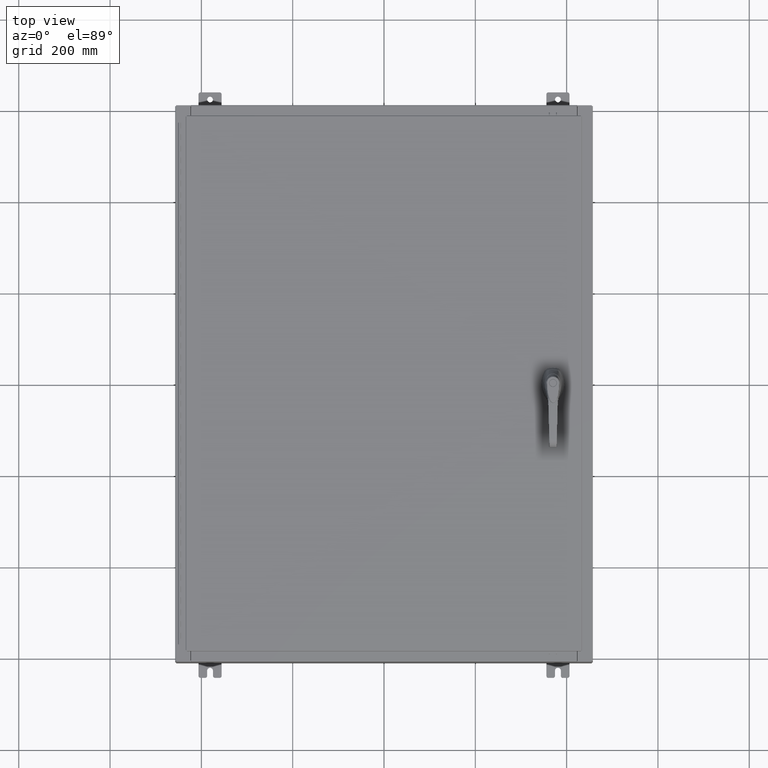
[diagram: clean part render]
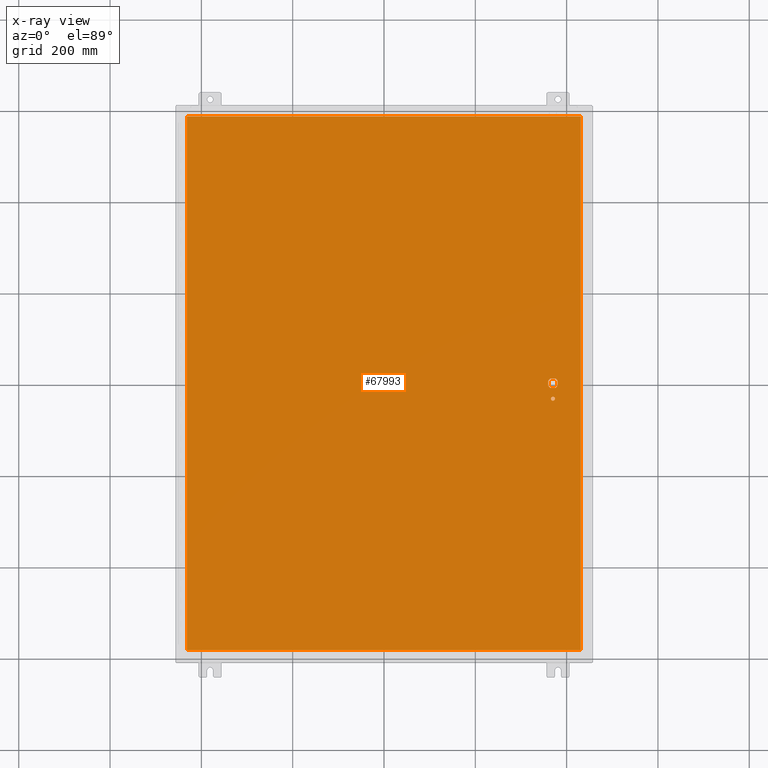
[diagram: x-ray — body ghosted, one internal face saturated and labeled with its STEP entity id]
A machine part, top view, then the same camera in x-ray: the body is ghosted and one INTERNAL B-rep face — a face not visible from any outside direction — is saturated and labeled: STEP entity #67993.
In plain terms, the highlighted planar face has unit normal (0, 0, -1).
Its self-contained STEP definition (entity closure, byte-faithful):
#1020 = CARTESIAN_POINT ( 'NONE',  ( 14.98099999999992700, 0.2002273707563075900, -0.07470000000000003000 ) ) ;
#2524 = AXIS2_PLACEMENT_3D ( 'NONE', #92184, #30022, #102583 ) ;
#3724 = CARTESIAN_POINT ( 'NONE',  ( 0.0000000000000000000, 0.0000000000000000000, -0.07470000000000000300 ) ) ;
#5314 = VERTEX_POINT ( 'NONE', #1020 ) ;
#6232 = VERTEX_POINT ( 'NONE', #21106 ) ;
#7034 = EDGE_CURVE ( 'NONE', #6232, #64340, #65610, .T. ) ;
#7605 = VERTEX_POINT ( 'NONE', #68672 ) ;
#8780 = DIRECTION ( 'NONE',  ( -1.000000000000000000, 0.0000000000000000000, 0.0000000000000000000 ) ) ;
#11219 = VERTEX_POINT ( 'NONE', #80505 ) ;
#12016 = CARTESIAN_POINT ( 'NONE',  ( 14.37777262924369000, 0.4029999999999252000, -0.07470000000000003000 ) ) ;
#12076 = EDGE_LOOP ( 'NONE', ( #100006, #33855, #123678, #41258 ) ) ;
#13948 = EDGE_CURVE ( 'NONE', #28593, #56545, #74224, .T. ) ;
#15265 = LINE ( 'NONE', #44502, #122368 ) ;
#18925 = CARTESIAN_POINT ( 'NONE',  ( 14.57799999999999900, 0.0000000000000000000, -0.07470000000000003000 ) ) ;
#21106 = CARTESIAN_POINT ( 'NONE',  ( 16.99029999999999800, 23.00630000000000300, -0.07470000000000000300 ) ) ;
#22406 = EDGE_CURVE ( 'NONE', #45009, #97822, #48580, .T. ) ;
#23104 = DIRECTION ( 'NONE',  ( 5.457491617345625800E-015, -1.000000000000000000, 0.0000000000000000000 ) ) ;
#24493 = CARTESIAN_POINT ( 'NONE',  ( 14.77822737075630900, 0.4029999999999250300, -0.07470000000000003000 ) ) ;
#24554 = DIRECTION ( 'NONE',  ( -1.000000000000000000, 0.0000000000000000000, -0.0000000000000000000 ) ) ;
#26044 = ORIENTED_EDGE ( 'NONE', *, *, #86337, .T. ) ;
#26246 = CIRCLE ( 'NONE', #79864, 0.4499999999999168000 ) ;
#27828 = CIRCLE ( 'NONE', #56399, 0.4499999999999168000 ) ;
#28206 = VECTOR ( 'NONE', #28889, 39.37007874015748100 ) ;
#28593 = VERTEX_POINT ( 'NONE', #88488 ) ;
#28889 = DIRECTION ( 'NONE',  ( 0.0000000000000000000, -1.000000000000000000, 0.0000000000000000000 ) ) ;
#29293 = CARTESIAN_POINT ( 'NONE',  ( 16.99029999999999800, -23.00630000000000000, -0.07470000000000000300 ) ) ;
#29324 = DIRECTION ( 'NONE',  ( -1.000000000000000000, -5.329070518200740300E-015, 0.0000000000000000000 ) ) ;
#29779 = EDGE_CURVE ( 'NONE', #77035, #6232, #15265, .T. ) ;
#30022 = DIRECTION ( 'NONE',  ( -0.0000000000000000000, -0.0000000000000000000, 1.000000000000000000 ) ) ;
#33855 = ORIENTED_EDGE ( 'NONE', *, *, #44879, .F. ) ;
#37885 = DIRECTION ( 'NONE',  ( 0.0000000000000000000, -1.000000000000000000, 0.0000000000000000000 ) ) ;
#41258 = ORIENTED_EDGE ( 'NONE', *, *, #7034, .F. ) ;
#41308 = VECTOR ( 'NONE', #43613, 39.37007874015748100 ) ;
#43613 = DIRECTION ( 'NONE',  ( -1.000000000000000000, -0.0000000000000000000, -0.0000000000000000000 ) ) ;
#44502 = CARTESIAN_POINT ( 'NONE',  ( 16.99029999999999800, -23.00630000000000300, -0.07470000000000019700 ) ) ;
#44879 = EDGE_CURVE ( 'NONE', #7605, #77035, #82700, .T. ) ;
#44997 = PLANE ( 'NONE',  #52706 ) ;
#45009 = VERTEX_POINT ( 'NONE', #62657 ) ;
#48580 = LINE ( 'NONE', #99981, #72872 ) ;
#48701 = CARTESIAN_POINT ( 'NONE',  ( 14.57799999999999900, 0.0000000000000000000, -0.07470000000000003000 ) ) ;
#49339 = CARTESIAN_POINT ( 'NONE',  ( -16.99029999999999400, 23.00630000000001000, -0.07470000000000129300 ) ) ;
#50303 = EDGE_CURVE ( 'NONE', #97822, #107798, #60876, .T. ) ;
#50347 = VECTOR ( 'NONE', #111269, 39.37007874015748100 ) ;
#51359 = LINE ( 'NONE', #85263, #54593 ) ;
#52300 = CARTESIAN_POINT ( 'NONE',  ( 14.17500000000007400, -0.2002273707563079800, -0.07470000000000003000 ) ) ;
#52706 = AXIS2_PLACEMENT_3D ( 'NONE', #3724, #86728, #24554 ) ;
#52815 = ORIENTED_EDGE ( 'NONE', *, *, #115786, .T. ) ;
#54593 = VECTOR ( 'NONE', #23104, 39.37007874015748100 ) ;
#55776 = DIRECTION ( 'NONE',  ( -0.0000000000000000000, -0.0000000000000000000, 1.000000000000000000 ) ) ;
#56399 = AXIS2_PLACEMENT_3D ( 'NONE', #117847, #55776, #128223 ) ;
#56545 = VERTEX_POINT ( 'NONE', #95530 ) ;
#59122 = DIRECTION ( 'NONE',  ( -1.000000000000000000, -1.776356839400246700E-015, 0.0000000000000000000 ) ) ;
#59989 = CARTESIAN_POINT ( 'NONE',  ( 14.57799999999999900, 0.0000000000000000000, -0.07470000000000003000 ) ) ;
#60214 = DIRECTION ( 'NONE',  ( -0.0000000000000000000, -0.0000000000000000000, 1.000000000000000000 ) ) ;
#60876 = CIRCLE ( 'NONE', #69810, 0.4499999999999168000 ) ;
#61274 = ORIENTED_EDGE ( 'NONE', *, *, #50303, .T. ) ;
#61358 = CARTESIAN_POINT ( 'NONE',  ( -16.99029999999999800, -23.00630000000000300, -0.07469999999999804600 ) ) ;
#62342 = LINE ( 'NONE', #49339, #28206 ) ;
#62657 = CARTESIAN_POINT ( 'NONE',  ( 14.17500000000007400, 0.2002273707563075900, -0.07470000000000003000 ) ) ;
#63234 = AXIS2_PLACEMENT_3D ( 'NONE', #122247, #60214, #132702 ) ;
#63471 = EDGE_CURVE ( 'NONE', #5314, #106907, #51359, .T. ) ;
#64340 = VERTEX_POINT ( 'NONE', #73209 ) ;
#65405 = FACE_BOUND ( 'NONE', #104880, .T. ) ;
#65610 = LINE ( 'NONE', #131927, #41308 ) ;
#66056 = ORIENTED_EDGE ( 'NONE', *, *, #13948, .T. ) ;
#67993 = ADVANCED_FACE ( 'NONE', ( #65405, #120540, #117284 ), #44997, .T. ) ;
#68672 = CARTESIAN_POINT ( 'NONE',  ( -16.99029999999999800, -23.00630000000000000, -0.07470000000000000300 ) ) ;
#69611 = EDGE_CURVE ( 'NONE', #56545, #28593, #86242, .T. ) ;
#69810 = AXIS2_PLACEMENT_3D ( 'NONE', #48701, #121176, #59122 ) ;
#70407 = DIRECTION ( 'NONE',  ( -1.000000000000000000, -5.329070518200740300E-015, 0.0000000000000000000 ) ) ;
#71764 = DIRECTION ( 'NONE',  ( 1.000000000000000000, -0.0000000000000000000, -0.0000000000000000000 ) ) ;
#71855 = ORIENTED_EDGE ( 'NONE', *, *, #97592, .T. ) ;
#72872 = VECTOR ( 'NONE', #37885, 39.37007874015748100 ) ;
#73209 = CARTESIAN_POINT ( 'NONE',  ( -16.99029999999999400, 23.00630000000000300, -0.07470000000000000300 ) ) ;
#73742 = ORIENTED_EDGE ( 'NONE', *, *, #69611, .T. ) ;
#74165 = ORIENTED_EDGE ( 'NONE', *, *, #93424, .T. ) ;
#74224 = CIRCLE ( 'NONE', #2524, 0.1715000000000011500 ) ;
#74248 = CIRCLE ( 'NONE', #120071, 0.4499999999999168000 ) ;
#77035 = VERTEX_POINT ( 'NONE', #29293 ) ;
#77897 = LINE ( 'NONE', #90476, #50347 ) ;
#79864 = AXIS2_PLACEMENT_3D ( 'NONE', #59989, #132466, #70407 ) ;
#80162 = ORIENTED_EDGE ( 'NONE', *, *, #63471, .F. ) ;
#80505 = CARTESIAN_POINT ( 'NONE',  ( 14.77822737075630900, -0.4029999999999252000, -0.07470000000000003000 ) ) ;
#81374 = CARTESIAN_POINT ( 'NONE',  ( 0.0000000000000000000, 0.4029999999999252000, -0.07470000000000003000 ) ) ;
#82700 = LINE ( 'NONE', #61358, #134538 ) ;
#85263 = CARTESIAN_POINT ( 'NONE',  ( 14.98099999999992700, 8.175868191945441800E-014, -0.07470000000000003000 ) ) ;
#85278 = VERTEX_POINT ( 'NONE', #24493 ) ;
#86242 = CIRCLE ( 'NONE', #63234, 0.1715000000000011500 ) ;
#86337 = EDGE_CURVE ( 'NONE', #5314, #85278, #74248, .T. ) ;
#86728 = DIRECTION ( 'NONE',  ( 0.0000000000000000000, 0.0000000000000000000, -1.000000000000000000 ) ) ;
#88488 = CARTESIAN_POINT ( 'NONE',  ( 14.74950000000000100, -1.338000000000000100, -0.07470000000000003000 ) ) ;
#89877 = ORIENTED_EDGE ( 'NONE', *, *, #22406, .T. ) ;
#90476 = CARTESIAN_POINT ( 'NONE',  ( 0.0000000000000000000, -0.4029999999999252000, -0.07470000000000003000 ) ) ;
#90966 = VERTEX_POINT ( 'NONE', #12016 ) ;
#91494 = DIRECTION ( 'NONE',  ( -0.0000000000000000000, -0.0000000000000000000, 1.000000000000000000 ) ) ;
#91517 = EDGE_LOOP ( 'NONE', ( #115131, #80162, #26044, #52815, #74165, #89877, #61274, #71855 ) ) ;
#92184 = CARTESIAN_POINT ( 'NONE',  ( 14.57799999999999900, -1.338000000000000100, -0.07470000000000003000 ) ) ;
#93424 = EDGE_CURVE ( 'NONE', #90966, #45009, #26246, .T. ) ;
#93749 = EDGE_CURVE ( 'NONE', #11219, #106907, #27828, .T. ) ;
#95530 = CARTESIAN_POINT ( 'NONE',  ( 14.40649999999999800, -1.338000000000000100, -0.07470000000000003000 ) ) ;
#97592 = EDGE_CURVE ( 'NONE', #107798, #11219, #77897, .T. ) ;
#97822 = VERTEX_POINT ( 'NONE', #52300 ) ;
#98939 = VECTOR ( 'NONE', #8780, 39.37007874015748100 ) ;
#99981 = CARTESIAN_POINT ( 'NONE',  ( 14.17500000000007400, 0.0000000000000000000, -0.07470000000000003000 ) ) ;
#100006 = ORIENTED_EDGE ( 'NONE', *, *, #29779, .F. ) ;
#102583 = DIRECTION ( 'NONE',  ( -1.000000000000000000, 0.0000000000000000000, 0.0000000000000000000 ) ) ;
#104880 = EDGE_LOOP ( 'NONE', ( #66056, #73742 ) ) ;
#105145 = EDGE_CURVE ( 'NONE', #64340, #7605, #62342, .T. ) ;
#106610 = DIRECTION ( 'NONE',  ( 0.0000000000000000000, 1.000000000000000000, 0.0000000000000000000 ) ) ;
#106770 = CARTESIAN_POINT ( 'NONE',  ( 14.37777262924369000, -0.4029999999999250300, -0.07470000000000003000 ) ) ;
#106907 = VERTEX_POINT ( 'NONE', #130487 ) ;
#107798 = VERTEX_POINT ( 'NONE', #106770 ) ;
#111269 = DIRECTION ( 'NONE',  ( 1.000000000000000000, 0.0000000000000000000, 0.0000000000000000000 ) ) ;
#115131 = ORIENTED_EDGE ( 'NONE', *, *, #93749, .T. ) ;
#115786 = EDGE_CURVE ( 'NONE', #85278, #90966, #129734, .T. ) ;
#117284 = FACE_BOUND ( 'NONE', #91517, .T. ) ;
#117847 = CARTESIAN_POINT ( 'NONE',  ( 14.57799999999999900, 0.0000000000000000000, -0.07470000000000003000 ) ) ;
#120071 = AXIS2_PLACEMENT_3D ( 'NONE', #18925, #91494, #29324 ) ;
#120540 = FACE_OUTER_BOUND ( 'NONE', #12076, .T. ) ;
#121176 = DIRECTION ( 'NONE',  ( -0.0000000000000000000, -0.0000000000000000000, 1.000000000000000000 ) ) ;
#122247 = CARTESIAN_POINT ( 'NONE',  ( 14.57799999999999900, -1.338000000000000100, -0.07470000000000003000 ) ) ;
#122368 = VECTOR ( 'NONE', #106610, 39.37007874015748100 ) ;
#123678 = ORIENTED_EDGE ( 'NONE', *, *, #105145, .F. ) ;
#128223 = DIRECTION ( 'NONE',  ( -1.000000000000000000, -1.776356839400246700E-015, 0.0000000000000000000 ) ) ;
#129734 = LINE ( 'NONE', #81374, #98939 ) ;
#130487 = CARTESIAN_POINT ( 'NONE',  ( 14.98099999999992700, -0.2002273707563067300, -0.07470000000000003000 ) ) ;
#131927 = CARTESIAN_POINT ( 'NONE',  ( 16.99029999999999800, 23.00630000000001000, -0.07469999999999804600 ) ) ;
#132466 = DIRECTION ( 'NONE',  ( -0.0000000000000000000, -0.0000000000000000000, 1.000000000000000000 ) ) ;
#132702 = DIRECTION ( 'NONE',  ( -1.000000000000000000, 0.0000000000000000000, 0.0000000000000000000 ) ) ;
#134538 = VECTOR ( 'NONE', #71764, 39.37007874015748100 ) ;